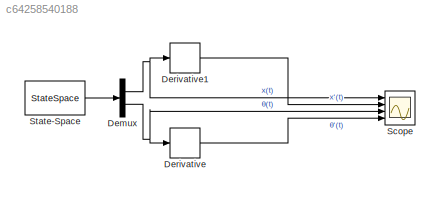
MODEL slx_c64258540188
KIND model
CONFIG AbsTol = auto
CONFIG EnableMultiTasking = off
CONFIG FixedStep = auto
CONFIG MaxStep = auto
CONFIG MinStep = auto
CONFIG RelTol = 1e-3
CONFIG SampleTimeConstraint = Unconstrained
CONFIG Solver = VariableStepAuto
CONFIG SolverName = VariableStepAuto
CONFIG StartTime = 0.0
CONFIG StopTime = 1
BLOCK [Demux] Demux
  DisplayOption = bar
  Outputs = 2
  Ports = [1, 2]
BLOCK [Derivative] Derivative
BLOCK [Derivative] Derivative1
BLOCK [Scope] Scope
  Floating = off
  NumInputPorts = 4
  Ports = [4]
  ScopeSpecificationString = Simulink.scopes.TimeScopeBlockCfg('CurrentConfiguration', extmgr.ConfigurationSet(extmgr.Configuration('Core','General UI',true),extmgr.Configuration('Core','Source UI',true),extmgr.Configuration('Sources','WiredSimulink',true),extmgr.Configuration('Visuals','Time Domain',true,'SerializedDisplays',{struct('MinYLimReal','-29.89222','MaxYLimReal','241.43288','YLabelReal','','MinYLimMag','0.00000','M...<+1386ch>
BLOCK [StateSpace] State-Space
  A = [0 1 0 0 ; 0 -14.4899 -1.9749 0 ; 0 0 0 1 ; 0 86.2495 58.3333 0]
  B = [0 ; 3.255 ; 0 ; -19.3751]
  C = [1 0 0 0 ; 0 0 1 0]
  D = [0;0]
  InitialCondition = [0,0,0.05,0]
  Ports = [1, 1]
NET Demux:1 -> Derivative1:1, Scope:1
NET Demux:2 -> Derivative:1, Scope:3
LINE Derivative1:1 -> Scope:2
LINE Derivative:1 -> Scope:4
LINE State-Space:1 -> Demux:1
note: NET lines group one-source signal fan-out (src -> all destinations, sorted); 1:1 wires keep LINE
